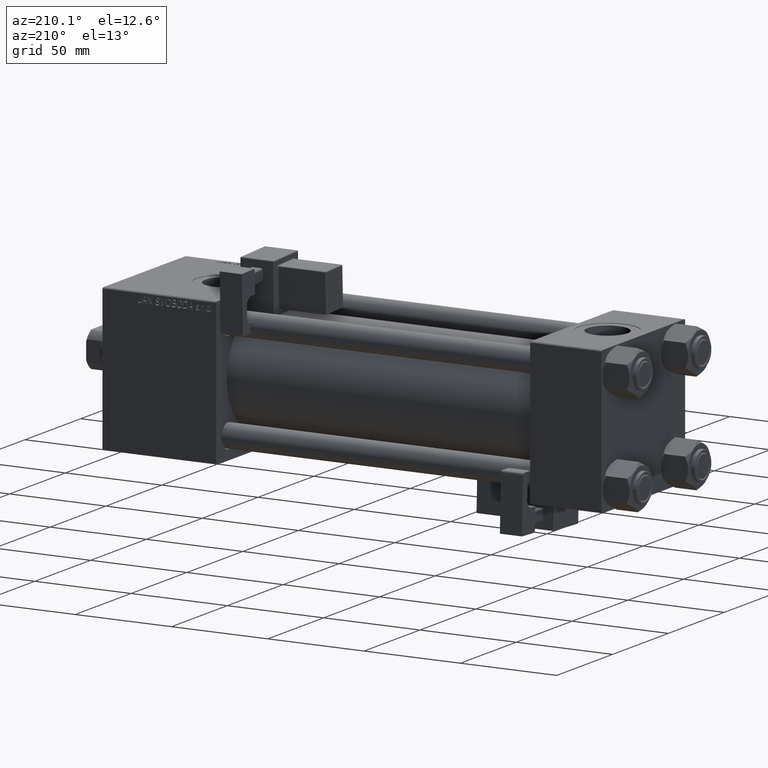
[diagram: clean part render]
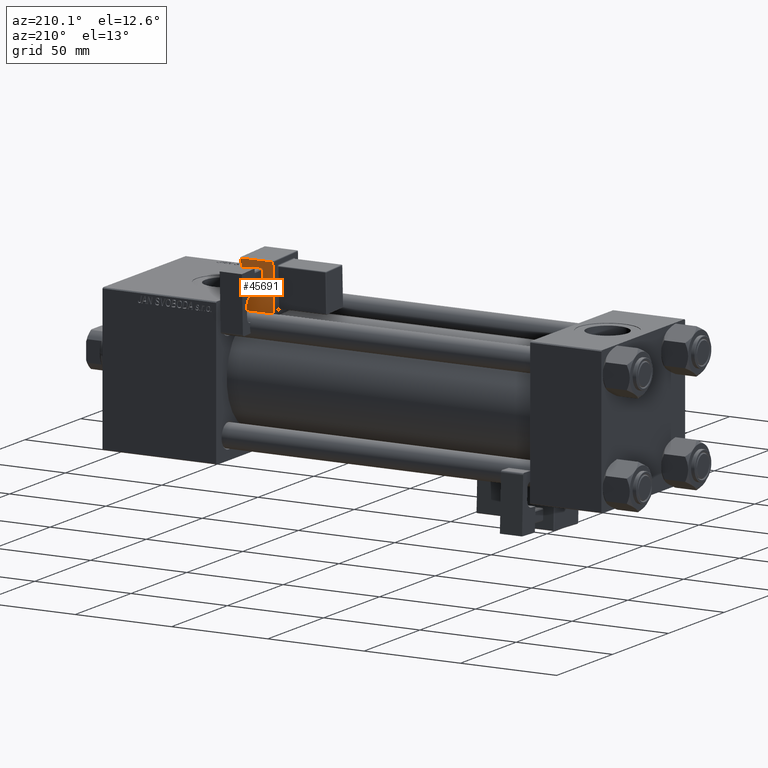
[diagram: same view with one face highlighted and labeled with its STEP entity id]
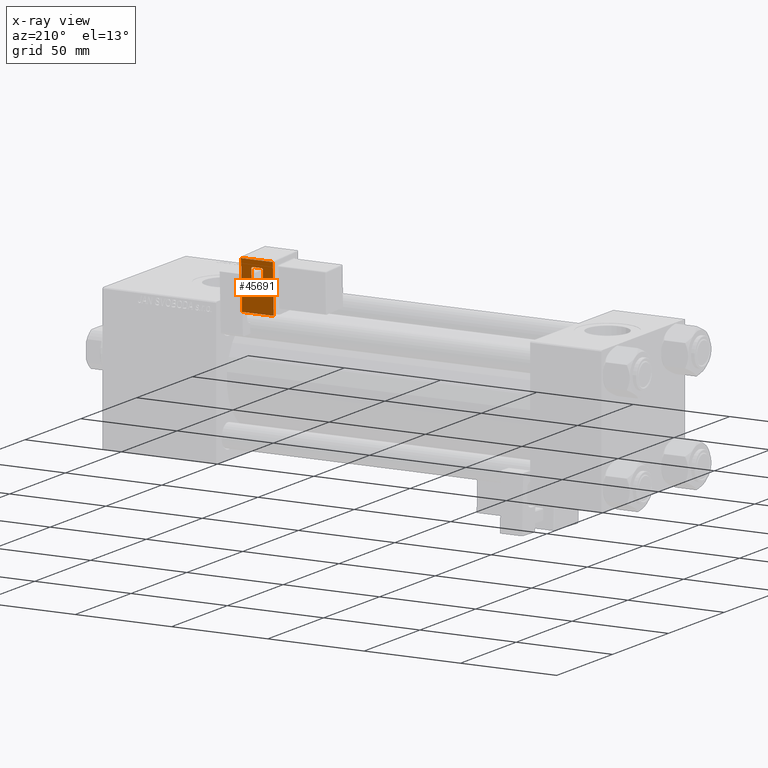
[diagram: x-ray of the same camera — body ghosted, the highlighted face saturated]
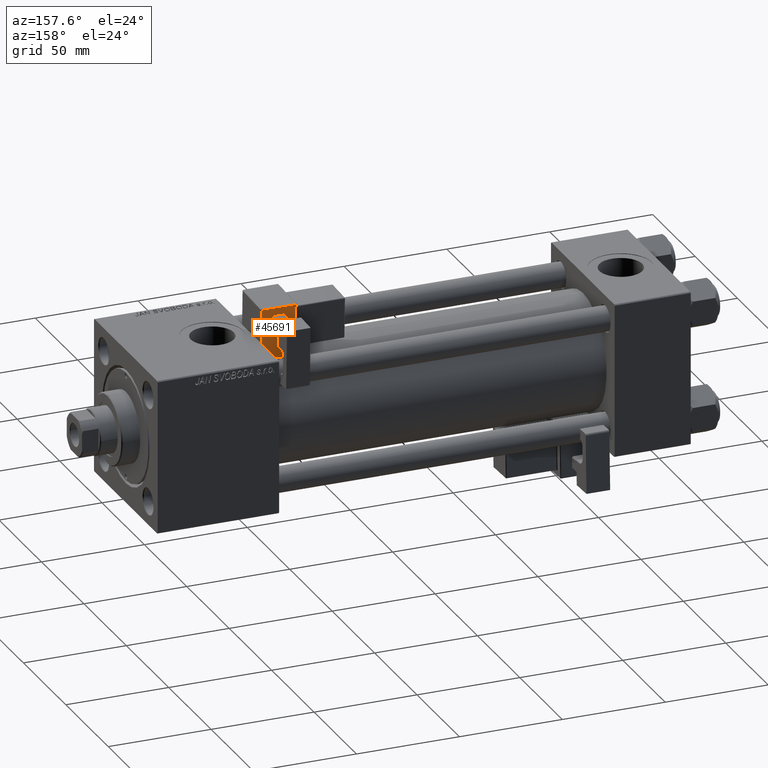
[diagram: same view with one face highlighted and labeled with its STEP entity id]
A machine part, auxiliary view. The second image highlights one B-rep face of the part: STEP entity #45691.
The next image is the same camera in x-ray: the body ghosted, the highlighted face saturated — about 0% of this face is hidden behind the body in this view.
A second angle (auxiliary view) of the same face is appended — the face is thin or edge-on in the first view.
In plain terms, the highlighted planar face has unit normal (0, 0.9994, -0.0353).
Its self-contained STEP definition (entity closure, byte-faithful):
#69 = VECTOR ( 'NONE', #43946, 1000.000000000000000 ) ;
#304 = CARTESIAN_POINT ( 'NONE',  ( 2.499999999999992895, -17.75000000000000355, 9.000000000000001776 ) ) ;
#1001 = CARTESIAN_POINT ( 'NONE',  ( 3.000000000000000000, -17.75000000000000355, 9.000000000000001776 ) ) ;
#2109 = CARTESIAN_POINT ( 'NONE',  ( -3.000000000000000000, -17.75000000000000355, 3.500000000000015099 ) ) ;
#2313 = LINE ( 'NONE', #34473, #45896 ) ;
#3275 = EDGE_CURVE ( 'NONE', #20733, #16996, #18431, .T. ) ;
#3908 = VERTEX_POINT ( 'NONE', #30935 ) ;
#4937 = DIRECTION ( 'NONE',  ( 1.000000000000000000, -0.000000000000000000, 7.228014483236695816E-17 ) ) ;
#4956 = EDGE_CURVE ( 'NONE', #5770, #52254, #40604, .T. ) ;
#5243 = CARTESIAN_POINT ( 'NONE',  ( 2.499999999999992895, -17.75000000000000355, 9.000000000000001776 ) ) ;
#5770 = VERTEX_POINT ( 'NONE', #5243 ) ;
#5887 = DIRECTION ( 'NONE',  ( 0.000000000000000000, -0.000000000000000000, 1.000000000000000000 ) ) ;
#6640 = ORIENTED_EDGE ( 'NONE', *, *, #41687, .T. ) ;
#6687 = FACE_OUTER_BOUND ( 'NONE', #47054, .T. ) ;
#6697 = CARTESIAN_POINT ( 'NONE',  ( 3.000000000000000000, -17.75000000000000355, 8.499999999999992895 ) ) ;
#7335 = VECTOR ( 'NONE', #44374, 1000.000000000000000 ) ;
#7534 = LINE ( 'NONE', #43437, #69 ) ;
#7842 = EDGE_CURVE ( 'NONE', #41496, #20733, #22497, .T. ) ;
#8008 = DIRECTION ( 'NONE',  ( -0.7071067811865474617, -0.000000000000000000, 0.7071067811865474617 ) ) ;
#8708 = DIRECTION ( 'NONE',  ( -1.000000000000000000, 0.000000000000000000, 0.000000000000000000 ) ) ;
#9734 = CARTESIAN_POINT ( 'NONE',  ( -2.499999999999984013, -17.75000000000000355, 3.000000000000000444 ) ) ;
#10025 = DIRECTION ( 'NONE',  ( 0.7071067811865474617, -0.000000000000000000, 0.7071067811865474617 ) ) ;
#10095 = EDGE_CURVE ( 'NONE', #16996, #3908, #12490, .T. ) ;
#10870 = VECTOR ( 'NONE', #8708, 1000.000000000000000 ) ;
#11257 = EDGE_CURVE ( 'NONE', #44676, #29131, #2313, .T. ) ;
#11322 = CARTESIAN_POINT ( 'NONE',  ( -8.750000000000003553, -17.75000000000000355, -0.5000000000000002220 ) ) ;
#12490 = LINE ( 'NONE', #45168, #28030 ) ;
#13690 = CARTESIAN_POINT ( 'NONE',  ( -3.000000000000000000, -17.75000000000000355, 8.500000000000000000 ) ) ;
#13821 = EDGE_LOOP ( 'NONE', ( #33569, #35681, #31712, #6640, #17672, #51021, #15937, #28694 ) ) ;
#14082 = CARTESIAN_POINT ( 'NONE',  ( 2.499999999999993339, -17.75000000000000355, 3.000000000000000888 ) ) ;
#15760 = CARTESIAN_POINT ( 'NONE',  ( 3.000000000000000888, -17.75000000000000355, 3.500000000000008438 ) ) ;
#15772 = EDGE_CURVE ( 'NONE', #3908, #41496, #7534, .T. ) ;
#15937 = ORIENTED_EDGE ( 'NONE', *, *, #33707, .T. ) ;
#16996 = VERTEX_POINT ( 'NONE', #29064 ) ;
#17513 = CARTESIAN_POINT ( 'NONE',  ( -8.250000000000003553, -17.75000000000000355, -0.5000000000000002220 ) ) ;
#17672 = ORIENTED_EDGE ( 'NONE', *, *, #39704, .T. ) ;
#18399 = VECTOR ( 'NONE', #45861, 1000.000000000000114 ) ;
#18431 = LINE ( 'NONE', #37838, #49561 ) ;
#18788 = ORIENTED_EDGE ( 'NONE', *, *, #7842, .T. ) ;
#19794 = CARTESIAN_POINT ( 'NONE',  ( -2.499999999999985789, -17.75000000000000355, 3.000000000000000444 ) ) ;
#20190 = DIRECTION ( 'NONE',  ( 1.000000000000000000, -0.000000000000000000, -1.982541115402065110E-16 ) ) ;
#20733 = VERTEX_POINT ( 'NONE', #17513 ) ;
#21008 = LINE ( 'NONE', #304, #38785 ) ;
#21820 = EDGE_CURVE ( 'NONE', #29131, #37194, #32875, .T. ) ;
#22497 = LINE ( 'NONE', #11322, #32197 ) ;
#22781 = AXIS2_PLACEMENT_3D ( 'NONE', #50831, #39112, #5887 ) ;
#24704 = ORIENTED_EDGE ( 'NONE', *, *, #3275, .T. ) ;
#25687 = VERTEX_POINT ( 'NONE', #9734 ) ;
#26090 = FACE_BOUND ( 'NONE', #13821, .T. ) ;
#26388 = VERTEX_POINT ( 'NONE', #2109 ) ;
#28030 = VECTOR ( 'NONE', #20190, 1000.000000000000000 ) ;
#28694 = ORIENTED_EDGE ( 'NONE', *, *, #11257, .T. ) ;
#29064 = CARTESIAN_POINT ( 'NONE',  ( -8.250000000000000000, -17.75000000000000355, 24.50000000000000000 ) ) ;
#29131 = VERTEX_POINT ( 'NONE', #15760 ) ;
#30185 = CARTESIAN_POINT ( 'NONE',  ( -2.499999999999999556, -17.75000000000000355, 9.000000000000001776 ) ) ;
#30935 = CARTESIAN_POINT ( 'NONE',  ( 8.250000000000000000, -17.75000000000000355, 24.49999999999999645 ) ) ;
#31712 = ORIENTED_EDGE ( 'NONE', *, *, #4956, .T. ) ;
#32197 = VECTOR ( 'NONE', #51218, 1000.000000000000000 ) ;
#32875 = LINE ( 'NONE', #33397, #35158 ) ;
#32935 = VERTEX_POINT ( 'NONE', #13690 ) ;
#33397 = CARTESIAN_POINT ( 'NONE',  ( 3.000000000000000000, -17.75000000000000355, 9.000000000000001776 ) ) ;
#33569 = ORIENTED_EDGE ( 'NONE', *, *, #21820, .T. ) ;
#33707 = EDGE_CURVE ( 'NONE', #25687, #44676, #49599, .T. ) ;
#33986 = ORIENTED_EDGE ( 'NONE', *, *, #15772, .T. ) ;
#34473 = CARTESIAN_POINT ( 'NONE',  ( 3.000000000000000888, -17.75000000000000355, 3.500000000000008438 ) ) ;
#35158 = VECTOR ( 'NONE', #37132, 1000.000000000000000 ) ;
#35681 = ORIENTED_EDGE ( 'NONE', *, *, #41077, .T. ) ;
#37118 = CARTESIAN_POINT ( 'NONE',  ( -3.000000000000000000, -17.75000000000000355, 8.500000000000000000 ) ) ;
#37132 = DIRECTION ( 'NONE',  ( -1.445602896647339163E-16, -0.000000000000000000, 1.000000000000000000 ) ) ;
#37194 = VERTEX_POINT ( 'NONE', #6697 ) ;
#37838 = CARTESIAN_POINT ( 'NONE',  ( -8.250000000000000000, -17.75000000000000355, 25.00000000000000000 ) ) ;
#38785 = VECTOR ( 'NONE', #8008, 1000.000000000000114 ) ;
#39112 = DIRECTION ( 'NONE',  ( 0.000000000000000000, 1.000000000000000000, 0.000000000000000000 ) ) ;
#39704 = EDGE_CURVE ( 'NONE', #32935, #26388, #40914, .T. ) ;
#40604 = LINE ( 'NONE', #1001, #10870 ) ;
#40649 = CARTESIAN_POINT ( 'NONE',  ( -3.000000000000000000, -17.75000000000000355, 9.000000000000001776 ) ) ;
#40914 = LINE ( 'NONE', #40649, #7335 ) ;
#41077 = EDGE_CURVE ( 'NONE', #37194, #5770, #21008, .T. ) ;
#41496 = VERTEX_POINT ( 'NONE', #45930 ) ;
#41687 = EDGE_CURVE ( 'NONE', #52254, #32935, #46135, .T. ) ;
#41817 = DIRECTION ( 'NONE',  ( 1.334402673828313093E-16, -0.000000000000000000, 1.000000000000000000 ) ) ;
#42070 = ORIENTED_EDGE ( 'NONE', *, *, #10095, .T. ) ;
#42593 = EDGE_CURVE ( 'NONE', #26388, #25687, #48238, .T. ) ;
#43437 = CARTESIAN_POINT ( 'NONE',  ( 8.250000000000003553, -17.75000000000000355, -1.000000000000000888 ) ) ;
#43946 = DIRECTION ( 'NONE',  ( 1.334402673828313339E-16, -0.000000000000000000, -1.000000000000000000 ) ) ;
#44374 = DIRECTION ( 'NONE',  ( 0.000000000000000000, 0.000000000000000000, -1.000000000000000000 ) ) ;
#44676 = VERTEX_POINT ( 'NONE', #14082 ) ;
#44817 = CARTESIAN_POINT ( 'NONE',  ( 3.000000000000000888, -17.75000000000000355, 3.000000000000000888 ) ) ;
#45168 = CARTESIAN_POINT ( 'NONE',  ( 8.750000000000000000, -17.75000000000000355, 24.49999999999999645 ) ) ;
#45691 = ADVANCED_FACE ( 'NONE', ( #6687, #26090 ), #46824, .T. ) ;
#45861 = DIRECTION ( 'NONE',  ( -0.7071067811865474617, 0.000000000000000000, -0.7071067811865474617 ) ) ;
#45896 = VECTOR ( 'NONE', #10025, 1000.000000000000114 ) ;
#45930 = CARTESIAN_POINT ( 'NONE',  ( 8.250000000000003553, -17.75000000000000355, -0.5000000000000002220 ) ) ;
#46135 = LINE ( 'NONE', #37118, #18399 ) ;
#46824 = PLANE ( 'NONE',  #22781 ) ;
#47054 = EDGE_LOOP ( 'NONE', ( #18788, #24704, #42070, #33986 ) ) ;
#48167 = VECTOR ( 'NONE', #48761, 999.9999999999998863 ) ;
#48238 = LINE ( 'NONE', #19794, #48167 ) ;
#48698 = VECTOR ( 'NONE', #4937, 1000.000000000000000 ) ;
#48761 = DIRECTION ( 'NONE',  ( 0.7071067811865472397, -0.000000000000000000, -0.7071067811865479058 ) ) ;
#49561 = VECTOR ( 'NONE', #41817, 1000.000000000000000 ) ;
#49599 = LINE ( 'NONE', #44817, #48698 ) ;
#50831 = CARTESIAN_POINT ( 'NONE',  ( 0.000000000000000000, -17.75000000000000355, 0.000000000000000000 ) ) ;
#51021 = ORIENTED_EDGE ( 'NONE', *, *, #42593, .T. ) ;
#51218 = DIRECTION ( 'NONE',  ( -1.000000000000000000, 0.000000000000000000, -0.000000000000000000 ) ) ;
#52254 = VERTEX_POINT ( 'NONE', #30185 ) ;